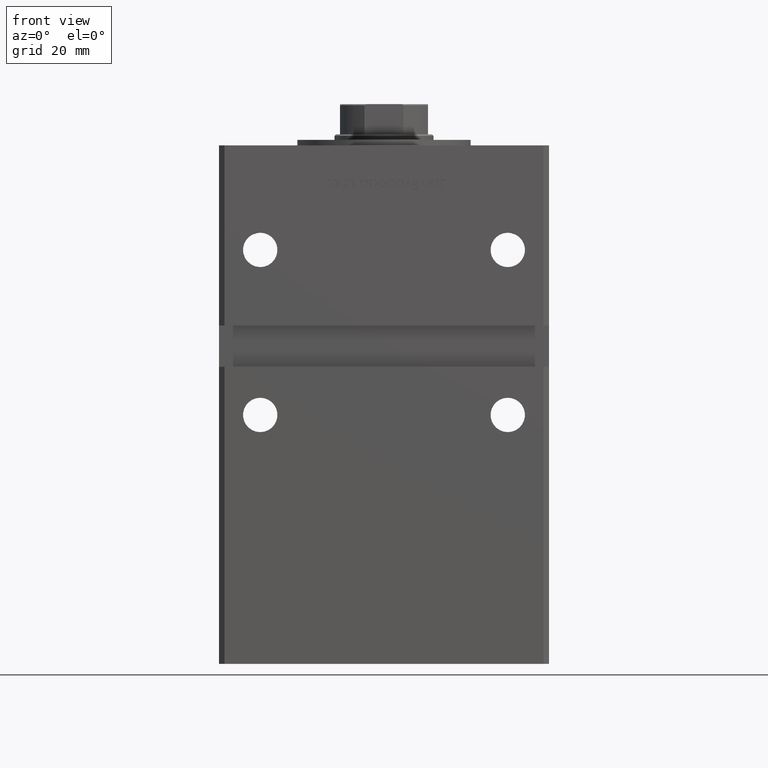
[diagram: clean part render]
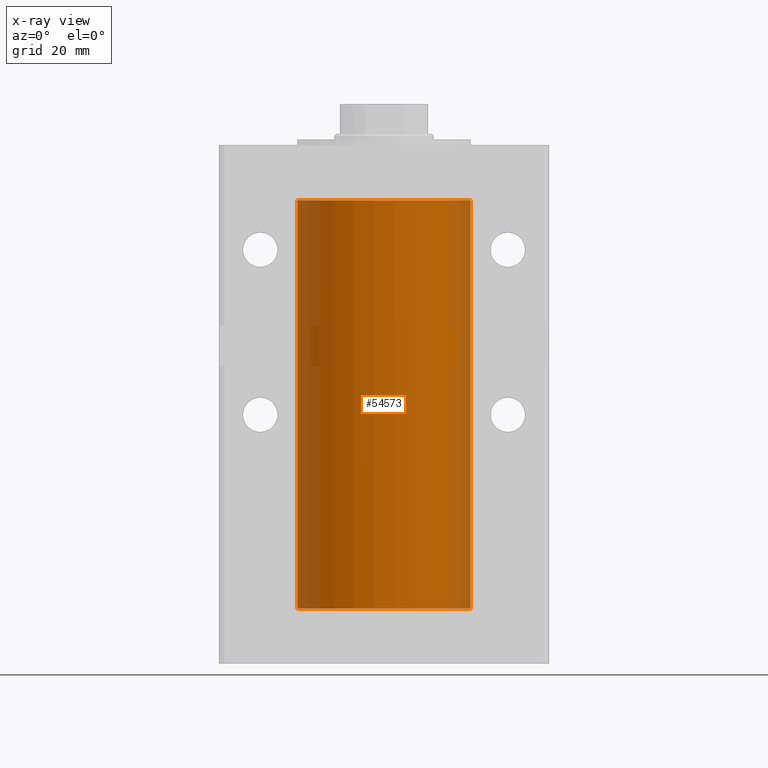
[diagram: x-ray — body ghosted, one internal face saturated and labeled with its STEP entity id]
A machine part, front view, then the same camera in x-ray: the body is ghosted and one INTERNAL B-rep face — a face not visible from any outside direction — is saturated and labeled: STEP entity #54573.
In plain terms, the highlighted cylindrical surface (partial cylindrical patch) has radius 31.5 mm, axis along (-0, -0, -1).
Its self-contained STEP definition (entity closure, byte-faithful):
#475 = DIRECTION ( 'NONE',  ( -0.000000000000000000, -0.000000000000000000, -1.000000000000000000 ) ) ;
#1414 = CARTESIAN_POINT ( 'NONE',  ( 0.000000000000000000, 0.000000000000000000, 148.5000000000000000 ) ) ;
#5670 = LINE ( 'NONE', #44150, #53094 ) ;
#6343 = EDGE_LOOP ( 'NONE', ( #15920, #22963, #30311, #43536 ) ) ;
#7501 = EDGE_CURVE ( 'NONE', #13321, #29047, #26997, .T. ) ;
#8795 = VERTEX_POINT ( 'NONE', #50975 ) ;
#8830 = CARTESIAN_POINT ( 'NONE',  ( 0.000000000000000000, 0.000000000000000000, 148.5000000000000000 ) ) ;
#9657 = DIRECTION ( 'NONE',  ( -0.000000000000000000, -0.000000000000000000, -1.000000000000000000 ) ) ;
#11639 = AXIS2_PLACEMENT_3D ( 'NONE', #54859, #24928, #21199 ) ;
#11641 = CARTESIAN_POINT ( 'NONE',  ( -31.50000000000000000, 0.000000000000000000, 0.000000000000000000 ) ) ;
#13300 = CARTESIAN_POINT ( 'NONE',  ( -31.50000000000000000, 0.000000000000000000, 148.5000000000000000 ) ) ;
#13321 = VERTEX_POINT ( 'NONE', #45622 ) ;
#15640 = VECTOR ( 'NONE', #475, 1000.000000000000000 ) ;
#15920 = ORIENTED_EDGE ( 'NONE', *, *, #53129, .T. ) ;
#17489 = VERTEX_POINT ( 'NONE', #54439 ) ;
#21199 = DIRECTION ( 'NONE',  ( 1.000000000000000000, 0.000000000000000000, 0.000000000000000000 ) ) ;
#22963 = ORIENTED_EDGE ( 'NONE', *, *, #41167, .T. ) ;
#24928 = DIRECTION ( 'NONE',  ( -0.000000000000000000, 0.000000000000000000, 1.000000000000000000 ) ) ;
#26997 = LINE ( 'NONE', #13300, #15640 ) ;
#29047 = VERTEX_POINT ( 'NONE', #11641 ) ;
#29758 = AXIS2_PLACEMENT_3D ( 'NONE', #8830, #39326, #29960 ) ;
#29960 = DIRECTION ( 'NONE',  ( 1.000000000000000000, 0.000000000000000000, 0.000000000000000000 ) ) ;
#30088 = EDGE_CURVE ( 'NONE', #29047, #17489, #41676, .T. ) ;
#30311 = ORIENTED_EDGE ( 'NONE', *, *, #30088, .F. ) ;
#38851 = CIRCLE ( 'NONE', #29758, 31.50000000000000000 ) ;
#39326 = DIRECTION ( 'NONE',  ( -0.000000000000000000, 0.000000000000000000, 1.000000000000000000 ) ) ;
#40475 = FACE_OUTER_BOUND ( 'NONE', #6343, .T. ) ;
#41167 = EDGE_CURVE ( 'NONE', #8795, #17489, #5670, .T. ) ;
#41676 = CIRCLE ( 'NONE', #11639, 31.50000000000000000 ) ;
#43536 = ORIENTED_EDGE ( 'NONE', *, *, #7501, .F. ) ;
#44150 = CARTESIAN_POINT ( 'NONE',  ( 31.50000000000000000, 3.857637417314162689E-15, 148.5000000000000000 ) ) ;
#45322 = DIRECTION ( 'NONE',  ( -0.000000000000000000, -0.000000000000000000, -1.000000000000000000 ) ) ;
#45622 = CARTESIAN_POINT ( 'NONE',  ( -31.50000000000000000, 0.000000000000000000, 148.5000000000000000 ) ) ;
#49580 = DIRECTION ( 'NONE',  ( -1.000000000000000000, 0.000000000000000000, 0.000000000000000000 ) ) ;
#50726 = AXIS2_PLACEMENT_3D ( 'NONE', #1414, #45322, #49580 ) ;
#50975 = CARTESIAN_POINT ( 'NONE',  ( 31.50000000000000000, 3.857637417314162689E-15, 148.5000000000000000 ) ) ;
#53094 = VECTOR ( 'NONE', #9657, 1000.000000000000000 ) ;
#53129 = EDGE_CURVE ( 'NONE', #13321, #8795, #38851, .T. ) ;
#53586 = CYLINDRICAL_SURFACE ( 'NONE', #50726, 31.50000000000000000 ) ;
#54439 = CARTESIAN_POINT ( 'NONE',  ( 31.50000000000000000, 3.857637417314162689E-15, 0.000000000000000000 ) ) ;
#54573 = ADVANCED_FACE ( 'NONE', ( #40475 ), #53586, .F. ) ;
#54859 = CARTESIAN_POINT ( 'NONE',  ( 0.000000000000000000, 0.000000000000000000, 0.000000000000000000 ) ) ;